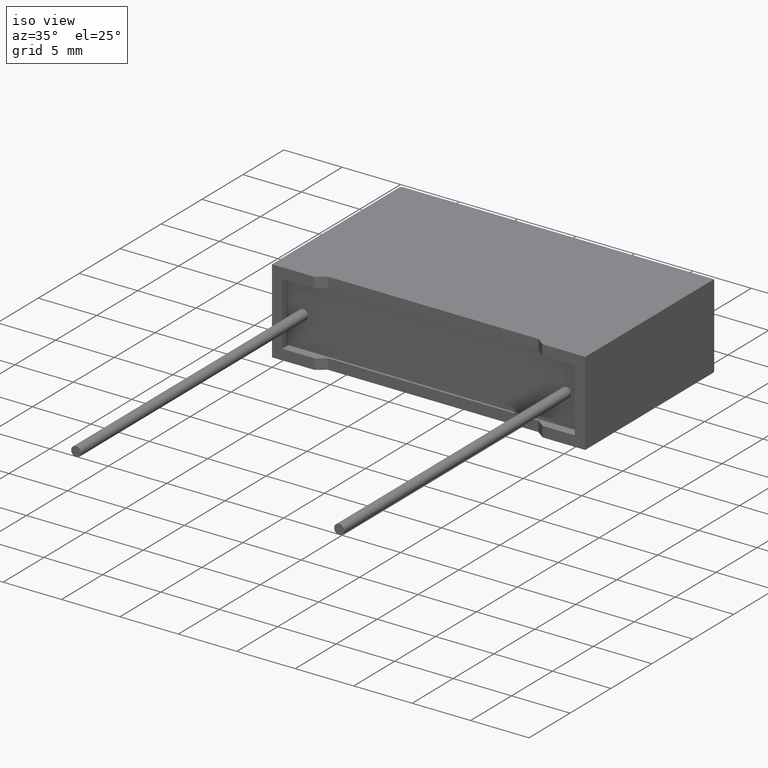
[diagram: clean part render]
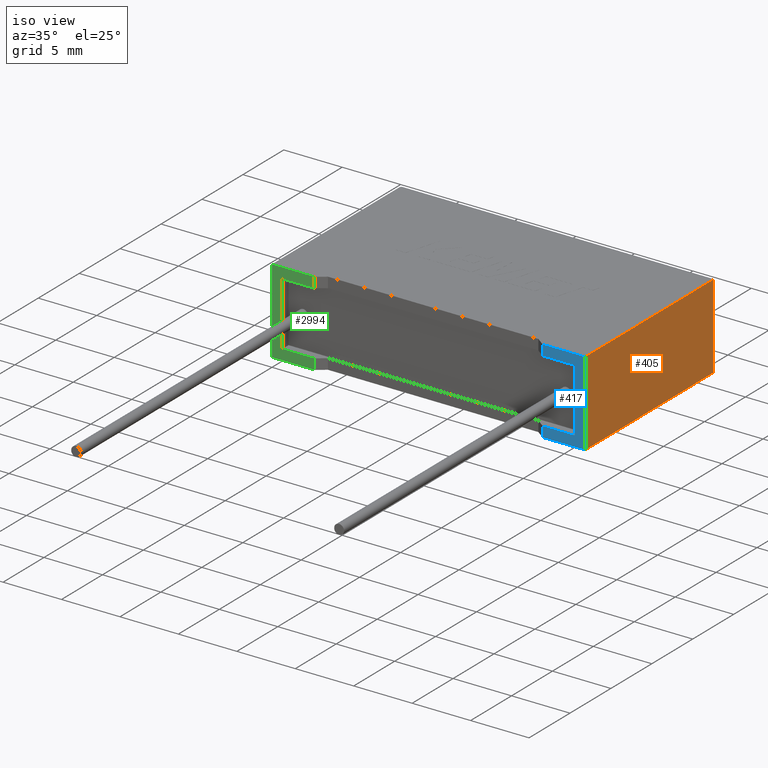
[diagram: same view with three faces highlighted in distinct colors, each labeled with its STEP entity id]
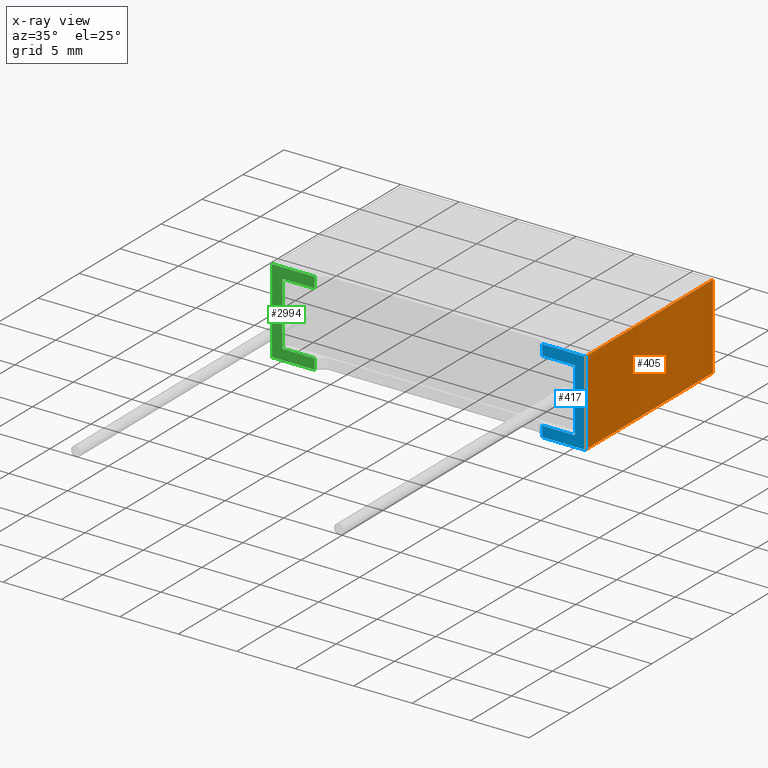
[diagram: x-ray of the same camera — body ghosted, the three highlighted faces saturated]
A machine part, iso view with three faces highlighted in distinct colors.
The next image is the same camera in x-ray (body ghosted, the three faces saturated) — at least one of them is partly hidden behind the body in this view.
Their STEP definitions:

[orange] entity #405 — the highlighted planar face has unit normal (-1, 0, 0).
#234 = DIRECTION ( 'NONE',  ( -0.0000000000000000000, -0.0000000000000000000, -1.000000000000000000 ) ) ;
#296 = CARTESIAN_POINT ( 'NONE',  ( 26.80000000000000100, 0.0000000000000000000, 7.200000000000000200 ) ) ;
#319 = VECTOR ( 'NONE', #2980, 1000.000000000000000 ) ;
#382 = VECTOR ( 'NONE', #234, 1000.000000000000000 ) ;
#401 = ORIENTED_EDGE ( 'NONE', *, *, #1806, .T. ) ;
#405 = ADVANCED_FACE ( 'NONE', ( #1291 ), #2427, .F. ) ;
#449 = EDGE_CURVE ( 'NONE', #466, #1726, #1507, .T. ) ;
#466 = VERTEX_POINT ( 'NONE', #2797 ) ;
#697 = ORIENTED_EDGE ( 'NONE', *, *, #1370, .F. ) ;
#837 = VECTOR ( 'NONE', #1166, 1000.000000000000000 ) ;
#1081 = CARTESIAN_POINT ( 'NONE',  ( 26.80000000000000100, 0.0000000000000000000, 0.0000000000000000000 ) ) ;
#1127 = CARTESIAN_POINT ( 'NONE',  ( 26.80000000000000100, 15.60000000000000000, 0.0000000000000000000 ) ) ;
#1153 = LINE ( 'NONE', #1403, #1188 ) ;
#1166 = DIRECTION ( 'NONE',  ( 0.0000000000000000000, 1.000000000000000000, 0.0000000000000000000 ) ) ;
#1188 = VECTOR ( 'NONE', #1636, 1000.000000000000000 ) ;
#1291 = FACE_OUTER_BOUND ( 'NONE', #1824, .T. ) ;
#1319 = VERTEX_POINT ( 'NONE', #1127 ) ;
#1370 = EDGE_CURVE ( 'NONE', #466, #1959, #2724, .T. ) ;
#1403 = CARTESIAN_POINT ( 'NONE',  ( 26.80000000000000100, 15.60000000000000000, 7.200000000000000200 ) ) ;
#1507 = LINE ( 'NONE', #2791, #382 ) ;
#1544 = DIRECTION ( 'NONE',  ( 0.0000000000000000000, 0.0000000000000000000, 1.000000000000000000 ) ) ;
#1568 = ORIENTED_EDGE ( 'NONE', *, *, #1902, .T. ) ;
#1636 = DIRECTION ( 'NONE',  ( -0.0000000000000000000, -0.0000000000000000000, 1.000000000000000000 ) ) ;
#1662 = CARTESIAN_POINT ( 'NONE',  ( 26.80000000000000100, 0.0000000000000000000, 7.200000000000000200 ) ) ;
#1726 = VERTEX_POINT ( 'NONE', #1081 ) ;
#1806 = EDGE_CURVE ( 'NONE', #1726, #1319, #2330, .T. ) ;
#1823 = CARTESIAN_POINT ( 'NONE',  ( 26.80000000000000100, 0.0000000000000000000, 0.0000000000000000000 ) ) ;
#1824 = EDGE_LOOP ( 'NONE', ( #401, #1568, #697, #2748 ) ) ;
#1902 = EDGE_CURVE ( 'NONE', #1319, #1959, #1153, .T. ) ;
#1959 = VERTEX_POINT ( 'NONE', #2618 ) ;
#2323 = DIRECTION ( 'NONE',  ( -1.000000000000000000, 0.0000000000000000000, 0.0000000000000000000 ) ) ;
#2330 = LINE ( 'NONE', #1823, #319 ) ;
#2427 = PLANE ( 'NONE',  #2469 ) ;
#2469 = AXIS2_PLACEMENT_3D ( 'NONE', #296, #2323, #1544 ) ;
#2618 = CARTESIAN_POINT ( 'NONE',  ( 26.80000000000000100, 15.60000000000000000, 7.200000000000000200 ) ) ;
#2724 = LINE ( 'NONE', #1662, #837 ) ;
#2748 = ORIENTED_EDGE ( 'NONE', *, *, #449, .T. ) ;
#2791 = CARTESIAN_POINT ( 'NONE',  ( 26.80000000000000100, 0.0000000000000000000, 7.200000000000000200 ) ) ;
#2797 = CARTESIAN_POINT ( 'NONE',  ( 26.80000000000000100, 0.0000000000000000000, 7.200000000000000200 ) ) ;
#2980 = DIRECTION ( 'NONE',  ( 0.0000000000000000000, 1.000000000000000000, 0.0000000000000000000 ) ) ;

[blue] entity #417 — the highlighted planar face has unit normal (0, 1, 0).
#39 = CARTESIAN_POINT ( 'NONE',  ( 23.15000000000000200, 2.234980408443920700E-016, 0.8933332440000003600 ) ) ;
#64 = EDGE_CURVE ( 'NONE', #1566, #601, #734, .T. ) ;
#75 = VECTOR ( 'NONE', #2847, 1000.000000000000000 ) ;
#164 = LINE ( 'NONE', #1724, #2612 ) ;
#166 = DIRECTION ( 'NONE',  ( -0.0000000000000000000, -0.0000000000000000000, 1.000000000000000000 ) ) ;
#216 = ORIENTED_EDGE ( 'NONE', *, *, #449, .F. ) ;
#225 = CARTESIAN_POINT ( 'NONE',  ( 23.15000000000000200, 2.234980408443920700E-016, 0.0000000000000000000 ) ) ;
#234 = DIRECTION ( 'NONE',  ( -0.0000000000000000000, -0.0000000000000000000, -1.000000000000000000 ) ) ;
#246 = DIRECTION ( 'NONE',  ( -1.000000000000000000, 0.0000000000000000000, -1.387039016726486000E-016 ) ) ;
#322 = CARTESIAN_POINT ( 'NONE',  ( 25.90666675600000000, 0.0000000000000000000, 6.306666755999999400 ) ) ;
#382 = VECTOR ( 'NONE', #234, 1000.000000000000000 ) ;
#417 = ADVANCED_FACE ( 'NONE', ( #1684 ), #1408, .F. ) ;
#440 = ORIENTED_EDGE ( 'NONE', *, *, #2422, .F. ) ;
#449 = EDGE_CURVE ( 'NONE', #466, #1726, #1507, .T. ) ;
#460 = DIRECTION ( 'NONE',  ( 0.0000000000000000000, 1.000000000000000000, 0.0000000000000000000 ) ) ;
#466 = VERTEX_POINT ( 'NONE', #2797 ) ;
#505 = CARTESIAN_POINT ( 'NONE',  ( 25.90666675600000000, 0.0000000000000000000, 6.306666755999999400 ) ) ;
#601 = VERTEX_POINT ( 'NONE', #39 ) ;
#638 = CARTESIAN_POINT ( 'NONE',  ( 23.15000000000000200, 2.234980408443920700E-016, 6.306666755999999400 ) ) ;
#704 = DIRECTION ( 'NONE',  ( -0.0000000000000000000, -0.0000000000000000000, 1.000000000000000000 ) ) ;
#726 = DIRECTION ( 'NONE',  ( 0.0000000000000000000, -0.0000000000000000000, 1.000000000000000000 ) ) ;
#734 = LINE ( 'NONE', #225, #1809 ) ;
#737 = LINE ( 'NONE', #505, #1515 ) ;
#792 = CARTESIAN_POINT ( 'NONE',  ( 25.90666675600000000, 0.0000000000000000000, 0.8933332440000003600 ) ) ;
#883 = ORIENTED_EDGE ( 'NONE', *, *, #1966, .T. ) ;
#924 = CARTESIAN_POINT ( 'NONE',  ( 23.15000000000000200, 2.234980408443920700E-016, 0.0000000000000000000 ) ) ;
#975 = VERTEX_POINT ( 'NONE', #792 ) ;
#1081 = CARTESIAN_POINT ( 'NONE',  ( 26.80000000000000100, 0.0000000000000000000, 0.0000000000000000000 ) ) ;
#1147 = LINE ( 'NONE', #2995, #2872 ) ;
#1330 = ORIENTED_EDGE ( 'NONE', *, *, #2738, .F. ) ;
#1408 = PLANE ( 'NONE',  #2090 ) ;
#1427 = VECTOR ( 'NONE', #1770, 1000.000000000000000 ) ;
#1447 = VERTEX_POINT ( 'NONE', #2388 ) ;
#1470 = EDGE_CURVE ( 'NONE', #1447, #466, #164, .T. ) ;
#1507 = LINE ( 'NONE', #2791, #382 ) ;
#1515 = VECTOR ( 'NONE', #246, 1000.000000000000000 ) ;
#1566 = VERTEX_POINT ( 'NONE', #924 ) ;
#1649 = LINE ( 'NONE', #2199, #1427 ) ;
#1658 = LINE ( 'NONE', #2838, #1884 ) ;
#1684 = FACE_OUTER_BOUND ( 'NONE', #1830, .T. ) ;
#1724 = CARTESIAN_POINT ( 'NONE',  ( 0.0000000000000000000, 0.0000000000000000000, 7.200000000000000200 ) ) ;
#1726 = VERTEX_POINT ( 'NONE', #1081 ) ;
#1770 = DIRECTION ( 'NONE',  ( 0.0000000000000000000, 0.0000000000000000000, 1.000000000000000000 ) ) ;
#1809 = VECTOR ( 'NONE', #704, 1000.000000000000000 ) ;
#1830 = EDGE_LOOP ( 'NONE', ( #3037, #883, #216, #2123, #440, #2431, #1330, #1904 ) ) ;
#1878 = VERTEX_POINT ( 'NONE', #638 ) ;
#1881 = DIRECTION ( 'NONE',  ( 1.000000000000000000, 0.0000000000000000000, 0.0000000000000000000 ) ) ;
#1884 = VECTOR ( 'NONE', #1881, 1000.000000000000000 ) ;
#1904 = ORIENTED_EDGE ( 'NONE', *, *, #1967, .F. ) ;
#1966 = EDGE_CURVE ( 'NONE', #1566, #1726, #2673, .T. ) ;
#1967 = EDGE_CURVE ( 'NONE', #601, #975, #1658, .T. ) ;
#2090 = AXIS2_PLACEMENT_3D ( 'NONE', #3047, #460, #726 ) ;
#2123 = ORIENTED_EDGE ( 'NONE', *, *, #1470, .F. ) ;
#2181 = EDGE_CURVE ( 'NONE', #2916, #1878, #737, .T. ) ;
#2199 = CARTESIAN_POINT ( 'NONE',  ( 25.90666675600000000, 0.0000000000000000000, 0.8933332440000003600 ) ) ;
#2388 = CARTESIAN_POINT ( 'NONE',  ( 23.15000000000000200, 2.234980408443920700E-016, 7.200000000000000200 ) ) ;
#2422 = EDGE_CURVE ( 'NONE', #1878, #1447, #1147, .T. ) ;
#2431 = ORIENTED_EDGE ( 'NONE', *, *, #2181, .F. ) ;
#2612 = VECTOR ( 'NONE', #2914, 1000.000000000000000 ) ;
#2673 = LINE ( 'NONE', #2818, #75 ) ;
#2738 = EDGE_CURVE ( 'NONE', #975, #2916, #1649, .T. ) ;
#2791 = CARTESIAN_POINT ( 'NONE',  ( 26.80000000000000100, 0.0000000000000000000, 7.200000000000000200 ) ) ;
#2797 = CARTESIAN_POINT ( 'NONE',  ( 26.80000000000000100, 0.0000000000000000000, 7.200000000000000200 ) ) ;
#2818 = CARTESIAN_POINT ( 'NONE',  ( 0.0000000000000000000, 0.0000000000000000000, 0.0000000000000000000 ) ) ;
#2838 = CARTESIAN_POINT ( 'NONE',  ( 0.8933332440000000300, 0.0000000000000000000, 0.8933332440000003600 ) ) ;
#2847 = DIRECTION ( 'NONE',  ( 1.000000000000000000, 0.0000000000000000000, 0.0000000000000000000 ) ) ;
#2872 = VECTOR ( 'NONE', #166, 1000.000000000000000 ) ;
#2914 = DIRECTION ( 'NONE',  ( 1.000000000000000000, 0.0000000000000000000, 0.0000000000000000000 ) ) ;
#2916 = VERTEX_POINT ( 'NONE', #322 ) ;
#2995 = CARTESIAN_POINT ( 'NONE',  ( 23.15000000000000200, 2.234980408443920700E-016, 0.0000000000000000000 ) ) ;
#3037 = ORIENTED_EDGE ( 'NONE', *, *, #64, .F. ) ;
#3047 = CARTESIAN_POINT ( 'NONE',  ( 0.0000000000000000000, 0.0000000000000000000, 7.200000000000000200 ) ) ;

[green] entity #2994 — the highlighted planar face has unit normal (0, 1, 0).
#44 = CARTESIAN_POINT ( 'NONE',  ( 0.0000000000000000000, 0.0000000000000000000, 0.0000000000000000000 ) ) ;
#63 = DIRECTION ( 'NONE',  ( 1.000000000000000000, 0.0000000000000000000, 0.0000000000000000000 ) ) ;
#79 = CARTESIAN_POINT ( 'NONE',  ( 3.650000000000001200, 2.234980408443920700E-016, 0.0000000000000000000 ) ) ;
#106 = EDGE_CURVE ( 'NONE', #2581, #353, #2111, .T. ) ;
#144 = ORIENTED_EDGE ( 'NONE', *, *, #577, .F. ) ;
#155 = EDGE_CURVE ( 'NONE', #353, #1627, #1690, .T. ) ;
#190 = ORIENTED_EDGE ( 'NONE', *, *, #1680, .F. ) ;
#198 = VERTEX_POINT ( 'NONE', #342 ) ;
#321 = DIRECTION ( 'NONE',  ( 1.000000000000000000, 0.0000000000000000000, 0.0000000000000000000 ) ) ;
#342 = CARTESIAN_POINT ( 'NONE',  ( 0.8933332440000000300, 0.0000000000000000000, 6.306666755999995800 ) ) ;
#353 = VERTEX_POINT ( 'NONE', #2747 ) ;
#355 = DIRECTION ( 'NONE',  ( 0.0000000000000000000, 1.000000000000000000, 0.0000000000000000000 ) ) ;
#521 = CARTESIAN_POINT ( 'NONE',  ( 0.8933332440000000300, 0.0000000000000000000, 0.8933332440000003600 ) ) ;
#577 = EDGE_CURVE ( 'NONE', #2958, #1452, #1350, .T. ) ;
#647 = LINE ( 'NONE', #1716, #2611 ) ;
#665 = ORIENTED_EDGE ( 'NONE', *, *, #2113, .T. ) ;
#887 = AXIS2_PLACEMENT_3D ( 'NONE', #1829, #355, #1097 ) ;
#955 = EDGE_CURVE ( 'NONE', #2418, #1796, #647, .T. ) ;
#958 = CARTESIAN_POINT ( 'NONE',  ( 0.0000000000000000000, 0.0000000000000000000, 7.200000000000000200 ) ) ;
#1012 = EDGE_CURVE ( 'NONE', #2581, #1796, #1535, .T. ) ;
#1097 = DIRECTION ( 'NONE',  ( 0.0000000000000000000, -0.0000000000000000000, 1.000000000000000000 ) ) ;
#1122 = PLANE ( 'NONE',  #887 ) ;
#1215 = VECTOR ( 'NONE', #1720, 1000.000000000000000 ) ;
#1230 = CARTESIAN_POINT ( 'NONE',  ( 3.650000000000001200, 2.234980408443920700E-016, 0.8933332440000003600 ) ) ;
#1281 = ORIENTED_EDGE ( 'NONE', *, *, #155, .T. ) ;
#1350 = LINE ( 'NONE', #521, #2617 ) ;
#1452 = VERTEX_POINT ( 'NONE', #1230 ) ;
#1535 = LINE ( 'NONE', #2194, #2934 ) ;
#1549 = DIRECTION ( 'NONE',  ( -0.0000000000000000000, -0.0000000000000000000, 1.000000000000000000 ) ) ;
#1617 = VECTOR ( 'NONE', #2657, 1000.000000000000000 ) ;
#1619 = VECTOR ( 'NONE', #1549, 1000.000000000000000 ) ;
#1627 = VERTEX_POINT ( 'NONE', #79 ) ;
#1680 = EDGE_CURVE ( 'NONE', #2418, #198, #2254, .T. ) ;
#1690 = LINE ( 'NONE', #44, #2801 ) ;
#1716 = CARTESIAN_POINT ( 'NONE',  ( 3.650000000000001200, 2.234980408443920700E-016, 0.0000000000000000000 ) ) ;
#1717 = ORIENTED_EDGE ( 'NONE', *, *, #1012, .F. ) ;
#1720 = DIRECTION ( 'NONE',  ( 0.0000000000000000000, 0.0000000000000000000, -1.000000000000000000 ) ) ;
#1738 = VECTOR ( 'NONE', #2230, 1000.000000000000000 ) ;
#1796 = VERTEX_POINT ( 'NONE', #2749 ) ;
#1829 = CARTESIAN_POINT ( 'NONE',  ( 0.0000000000000000000, 0.0000000000000000000, 7.200000000000000200 ) ) ;
#1856 = CARTESIAN_POINT ( 'NONE',  ( 3.650000000000001200, 2.234980408443920700E-016, 6.306666755999996700 ) ) ;
#1933 = ORIENTED_EDGE ( 'NONE', *, *, #955, .T. ) ;
#1987 = FACE_OUTER_BOUND ( 'NONE', #2385, .T. ) ;
#1994 = CARTESIAN_POINT ( 'NONE',  ( 25.90666675600000000, 0.0000000000000000000, 6.306666755999999400 ) ) ;
#2111 = LINE ( 'NONE', #958, #1617 ) ;
#2113 = EDGE_CURVE ( 'NONE', #1627, #1452, #2558, .T. ) ;
#2131 = CARTESIAN_POINT ( 'NONE',  ( 0.0000000000000000000, 0.0000000000000000000, 7.200000000000000200 ) ) ;
#2194 = CARTESIAN_POINT ( 'NONE',  ( 0.0000000000000000000, 0.0000000000000000000, 7.200000000000000200 ) ) ;
#2230 = DIRECTION ( 'NONE',  ( -1.000000000000000000, 0.0000000000000000000, -1.387039016726486000E-016 ) ) ;
#2254 = LINE ( 'NONE', #1994, #1738 ) ;
#2284 = CARTESIAN_POINT ( 'NONE',  ( 0.8933332440000000300, 0.0000000000000000000, 0.8933332440000003600 ) ) ;
#2366 = DIRECTION ( 'NONE',  ( 1.000000000000000000, 0.0000000000000000000, 0.0000000000000000000 ) ) ;
#2385 = EDGE_LOOP ( 'NONE', ( #1281, #665, #144, #2859, #190, #1933, #1717, #2715 ) ) ;
#2418 = VERTEX_POINT ( 'NONE', #1856 ) ;
#2558 = LINE ( 'NONE', #2899, #1619 ) ;
#2581 = VERTEX_POINT ( 'NONE', #2131 ) ;
#2587 = EDGE_CURVE ( 'NONE', #198, #2958, #2834, .T. ) ;
#2611 = VECTOR ( 'NONE', #2917, 1000.000000000000000 ) ;
#2617 = VECTOR ( 'NONE', #63, 1000.000000000000000 ) ;
#2657 = DIRECTION ( 'NONE',  ( -0.0000000000000000000, -0.0000000000000000000, -1.000000000000000000 ) ) ;
#2715 = ORIENTED_EDGE ( 'NONE', *, *, #106, .T. ) ;
#2747 = CARTESIAN_POINT ( 'NONE',  ( 0.0000000000000000000, 0.0000000000000000000, 0.0000000000000000000 ) ) ;
#2749 = CARTESIAN_POINT ( 'NONE',  ( 3.650000000000001200, 2.234980408443920700E-016, 7.200000000000000200 ) ) ;
#2801 = VECTOR ( 'NONE', #2366, 1000.000000000000000 ) ;
#2834 = LINE ( 'NONE', #2855, #1215 ) ;
#2855 = CARTESIAN_POINT ( 'NONE',  ( 0.8933332440000000300, 0.0000000000000000000, 6.306666755999995800 ) ) ;
#2859 = ORIENTED_EDGE ( 'NONE', *, *, #2587, .F. ) ;
#2899 = CARTESIAN_POINT ( 'NONE',  ( 3.650000000000001200, 2.234980408443920700E-016, 0.0000000000000000000 ) ) ;
#2917 = DIRECTION ( 'NONE',  ( -0.0000000000000000000, -0.0000000000000000000, 1.000000000000000000 ) ) ;
#2934 = VECTOR ( 'NONE', #321, 1000.000000000000000 ) ;
#2958 = VERTEX_POINT ( 'NONE', #2284 ) ;
#2994 = ADVANCED_FACE ( 'NONE', ( #1987 ), #1122, .F. ) ;